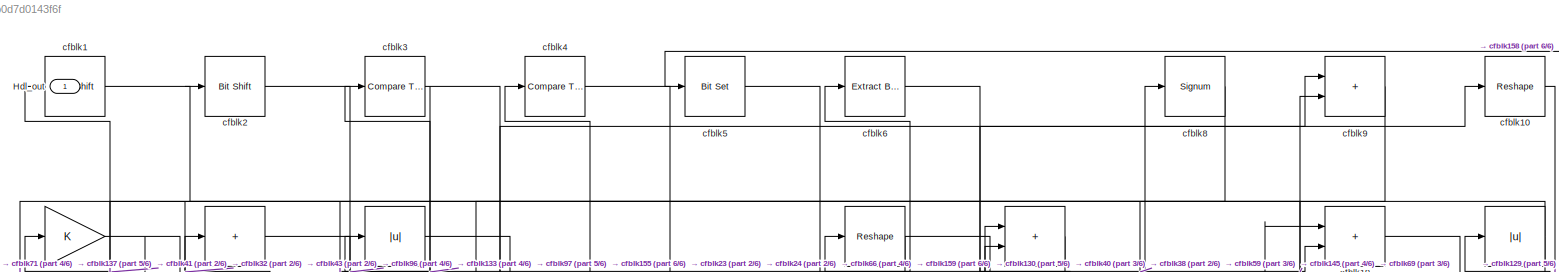
[diagram: root canvas - part 1/6, full width, top band]
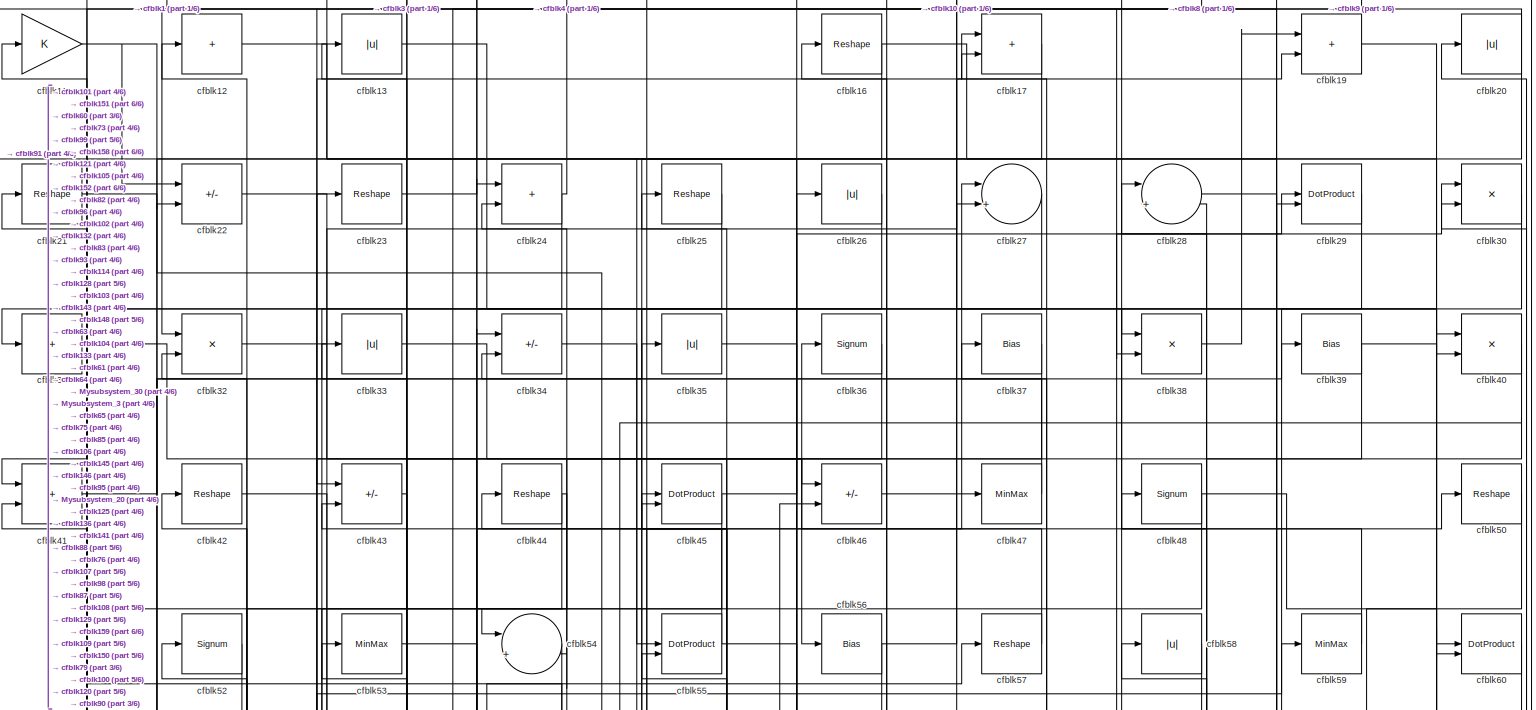
[diagram: root canvas - part 2/6, full width, top band]
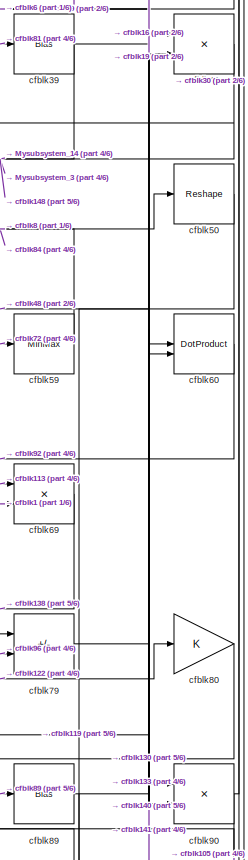
[diagram: root canvas - part 3/6, middle right region]
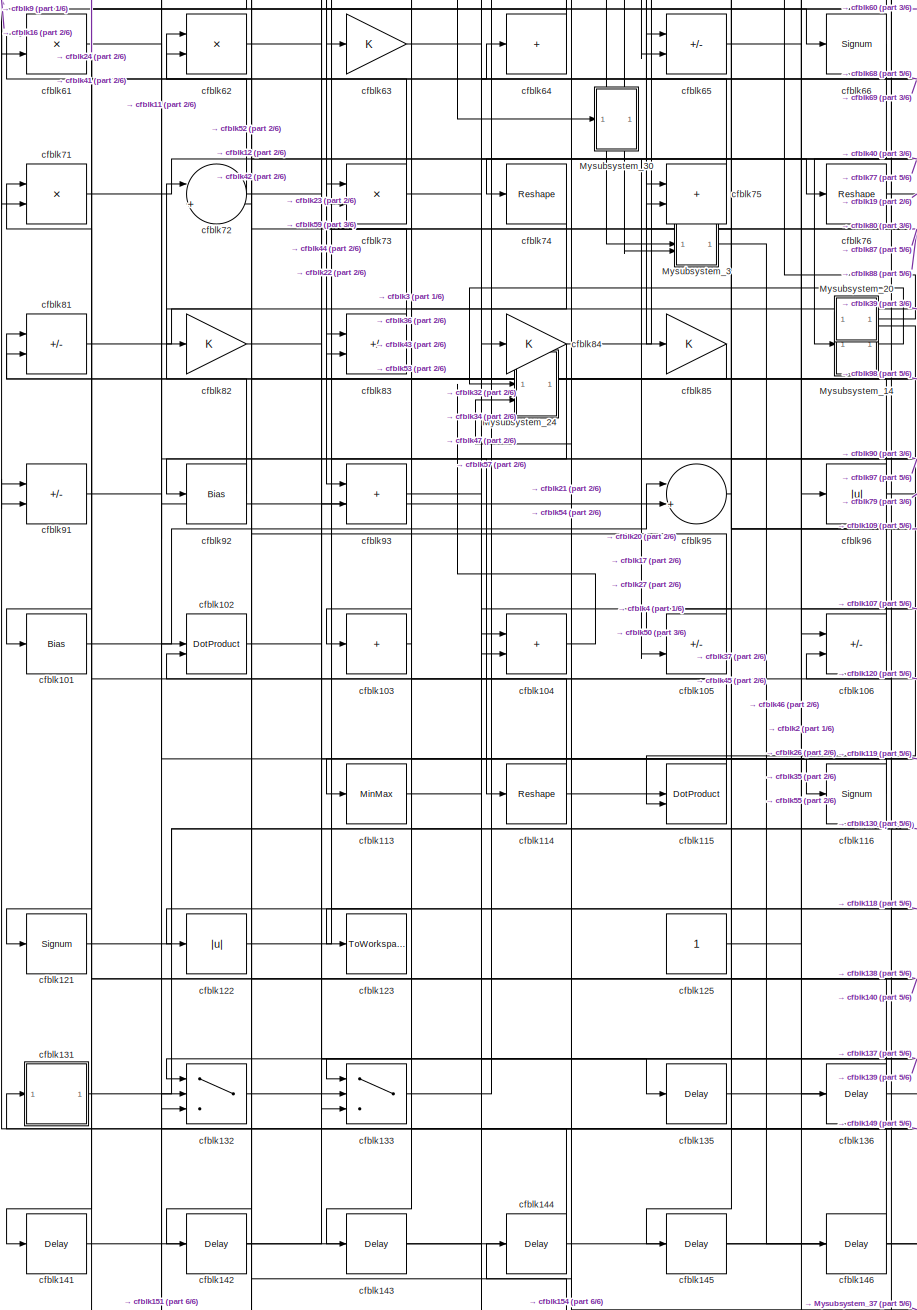
[diagram: root canvas - part 4/6, middle left region]
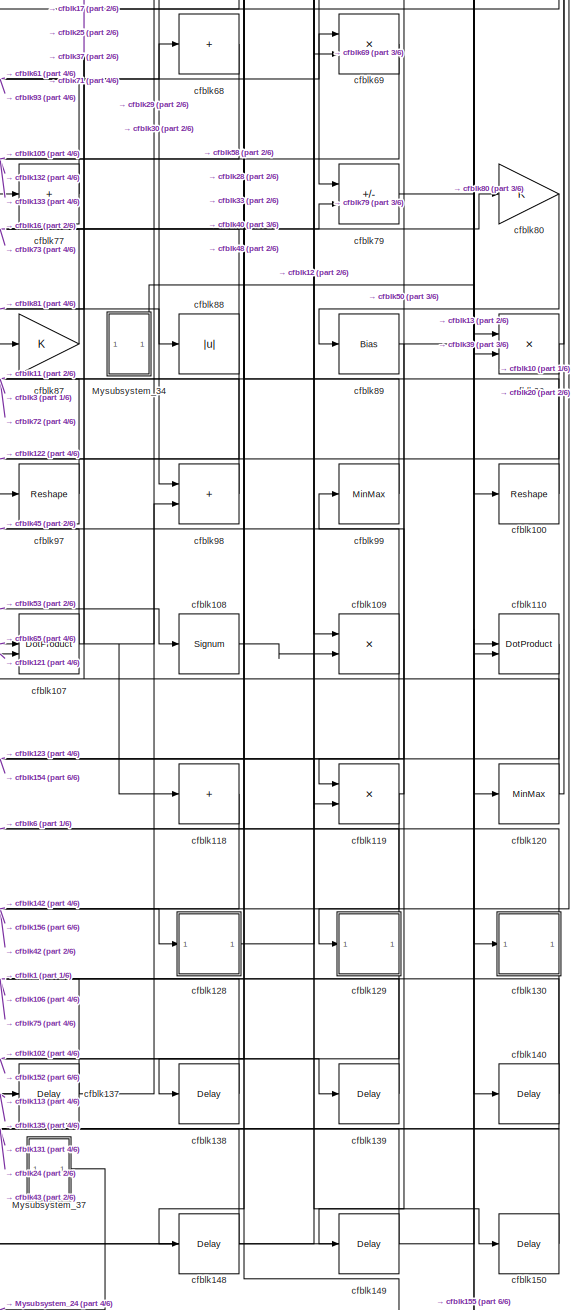
[diagram: root canvas - part 5/6, middle right region]
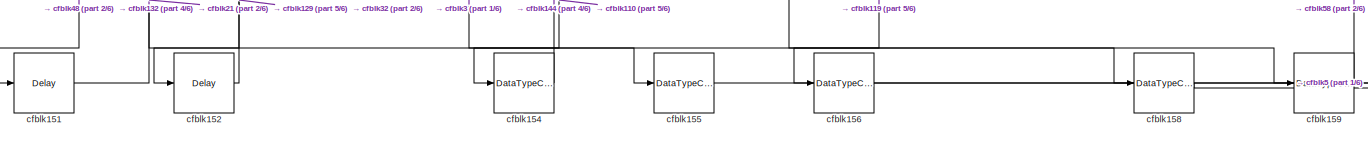
[diagram: root canvas - part 6/6, full width, bottom band]
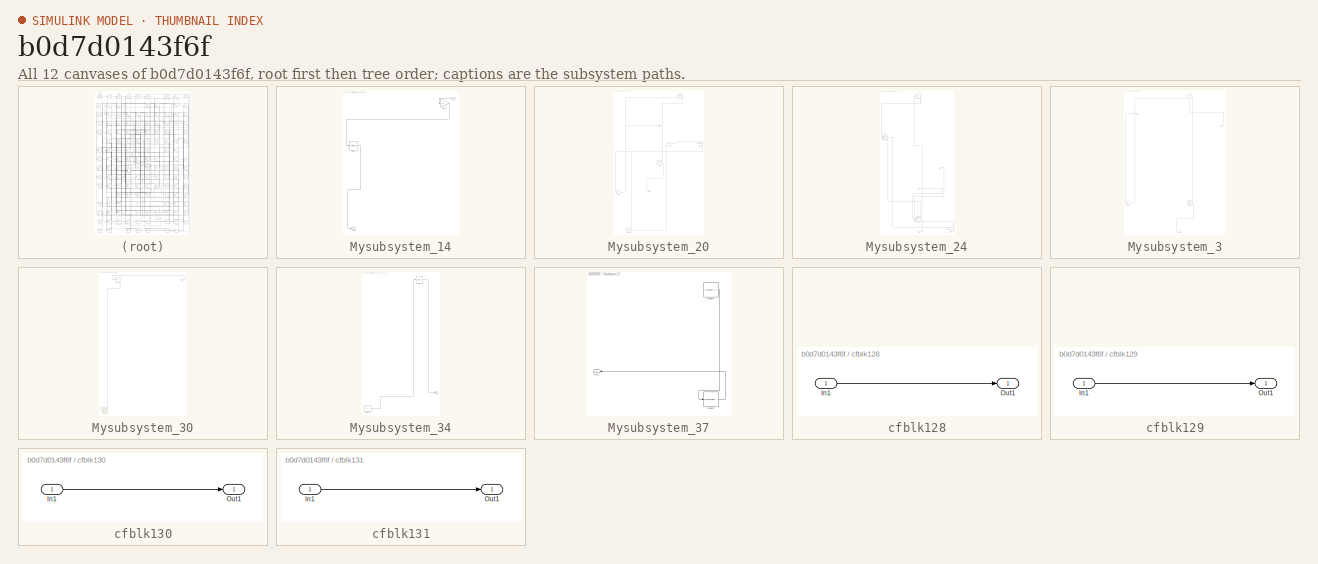
[diagram: thumbnail index - all 12 canvases of the model, root first then tree order]
MODEL slx_b0d7d0143f6f
KIND model
CONFIG AbsTol = auto
CONFIG EnableMultiTasking = off
CONFIG FixedStep = auto
CONFIG MaxStep = auto
CONFIG MinStep = auto
CONFIG RelTol = 1e-3
CONFIG SampleTimeConstraint = Unconstrained
CONFIG SolverName = VariableStepAuto
CONFIG StartTime = 0.0
CONFIG StopTime = 10.0
BLOCK [Outport] Hdl_out
  OutDataTypeStr = uint8
BLOCK [SubSystem] Mysubsystem_14
  RTWFcnName = Mysubsystem_14
  RTWFcnNameOpts = User specified
  RTWFileNameOpts = Use function name
  RTWSystemCode = Reusable function
  TreatAsAtomicUnit = on
BLOCK [Inport] Mysubsystem_14/In1
BLOCK [Outport] Mysubsystem_14/Out1
BLOCK [Gain] Mysubsystem_14/cfblk78
BLOCK [MinMax] Mysubsystem_14/cfblk94
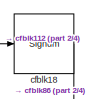
[diagram: Mysubsystem_20 - part 1/4, top right region]
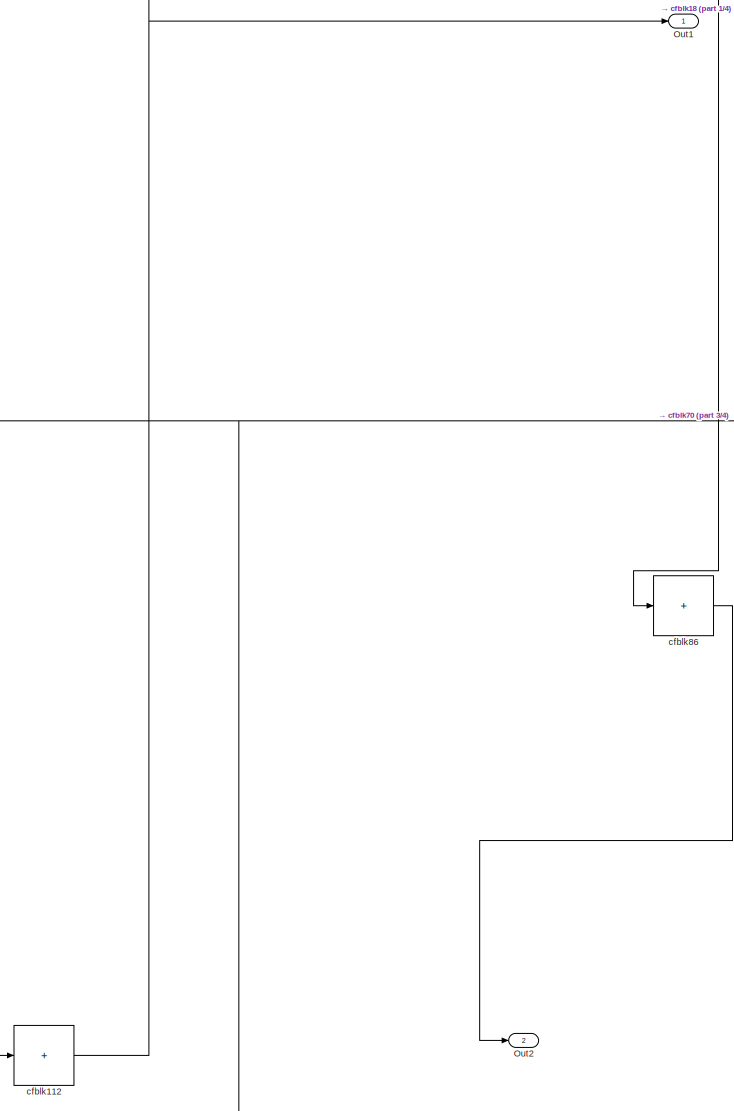
[diagram: Mysubsystem_20 - part 2/4, middle left region]
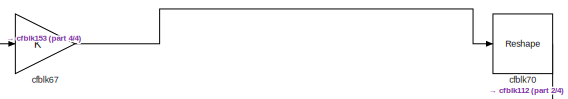
[diagram: Mysubsystem_20 - part 3/4, middle right region]
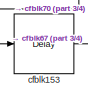
[diagram: Mysubsystem_20 - part 4/4, bottom left region]
BLOCK [SubSystem] Mysubsystem_20
  RTWFcnName = Mysubsystem_20
  RTWFcnNameOpts = User specified
  RTWFileNameOpts = Use function name
  RTWSystemCode = Reusable function
  TreatAsAtomicUnit = on
BLOCK [Outport] Mysubsystem_20/Out1
BLOCK [Outport] Mysubsystem_20/Out2
  Port = 2
BLOCK [Sum] Mysubsystem_20/cfblk112
  IconShape = rectangular
  Inputs = +
BLOCK [Delay] Mysubsystem_20/cfblk153
  InputPortMap = u0
  SampleTime = 1
BLOCK [Signum] Mysubsystem_20/cfblk18
BLOCK [Gain] Mysubsystem_20/cfblk67
BLOCK [Reshape] Mysubsystem_20/cfblk70
BLOCK [Sum] Mysubsystem_20/cfblk86
  IconShape = rectangular
  Inputs = +
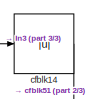
[diagram: Mysubsystem_24 - part 1/3, top center region]
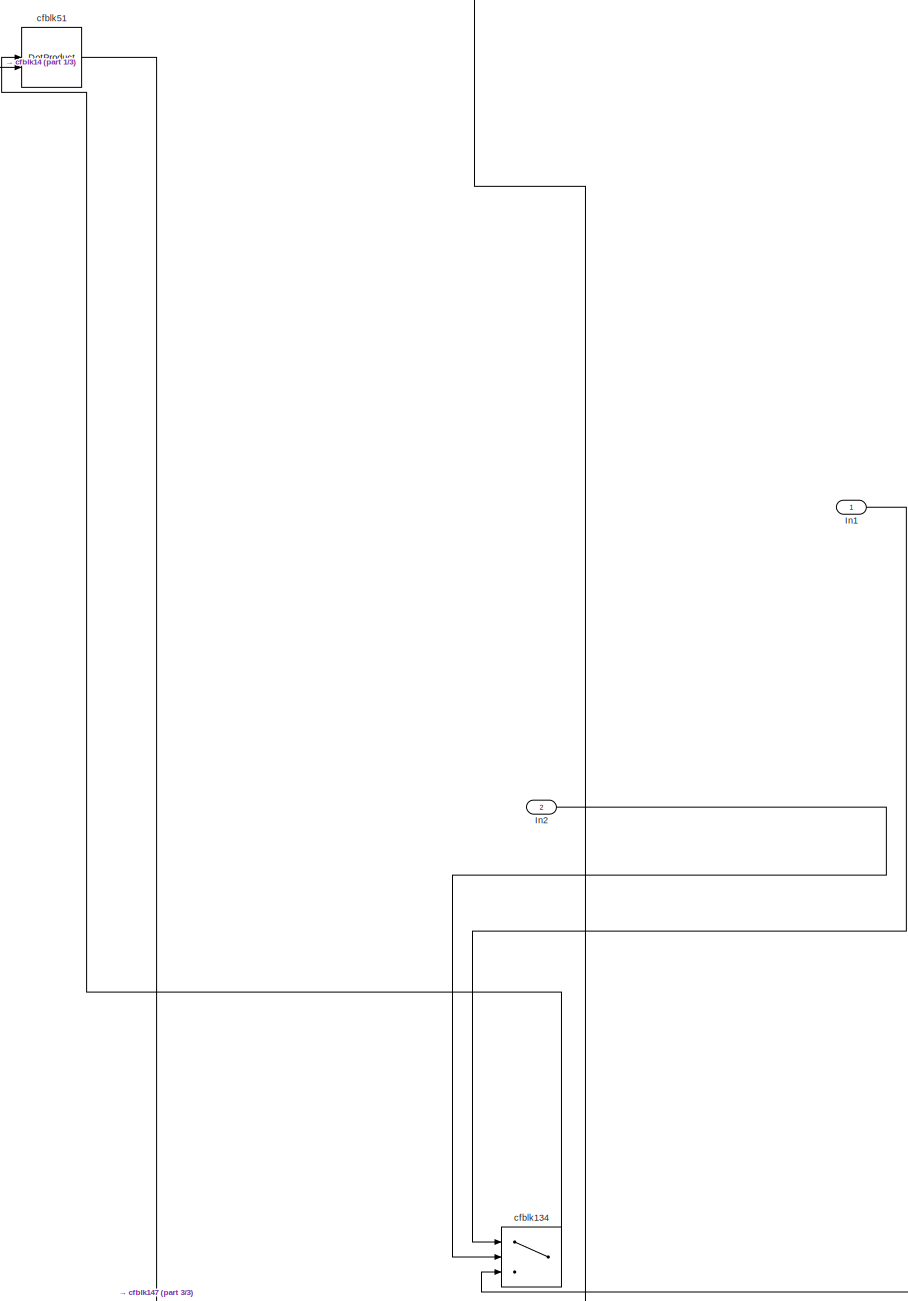
[diagram: Mysubsystem_24 - part 2/3, full width, middle band]
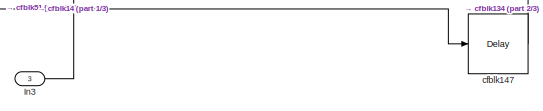
[diagram: Mysubsystem_24 - part 3/3, bottom right region]
BLOCK [SubSystem] Mysubsystem_24
  RTWFcnName = Mysubsystem_24
  RTWFcnNameOpts = User specified
  RTWFileNameOpts = Use function name
  RTWSystemCode = Reusable function
  TreatAsAtomicUnit = on
BLOCK [Inport] Mysubsystem_24/In1
BLOCK [Inport] Mysubsystem_24/In2
  Port = 2
BLOCK [Inport] Mysubsystem_24/In3
  Port = 3
BLOCK [Switch] Mysubsystem_24/cfblk134
  InputSameDT = off
  SaturateOnIntegerOverflow = off
BLOCK [Abs] Mysubsystem_24/cfblk14
  SaturateOnIntegerOverflow = off
BLOCK [Delay] Mysubsystem_24/cfblk147
  InputPortMap = u0
  SampleTime = 1
BLOCK [DotProduct] Mysubsystem_24/cfblk51
  OutDataTypeStr = Inherit: Inherit via internal rule
BLOCK [SubSystem] Mysubsystem_3
  RTWFcnName = Mysubsystem_3
  RTWFcnNameOpts = User specified
  RTWFileNameOpts = Use function name
  RTWSystemCode = Reusable function
  TreatAsAtomicUnit = on
BLOCK [Inport] Mysubsystem_3/In1
BLOCK [Inport] Mysubsystem_3/In2
  Port = 2
BLOCK [Outport] Mysubsystem_3/Out1
BLOCK [Sum] Mysubsystem_3/cfblk111
  IconShape = rectangular
  Inputs = +
BLOCK [Bias] Mysubsystem_3/cfblk117
  Bias = 0.0
  SaturateOnIntegerOverflow = off
BLOCK [Sum] Mysubsystem_3/cfblk7
  Inputs = |++
BLOCK [SubSystem] Mysubsystem_30
  RTWFcnName = Mysubsystem_30
  RTWFcnNameOpts = User specified
  RTWFileNameOpts = Use function name
  RTWSystemCode = Reusable function
  TreatAsAtomicUnit = on
BLOCK [Inport] Mysubsystem_30/In1
BLOCK [Scope] Mysubsystem_30/cfblk124
  Floating = off
  NumInputPorts = 1
  ScopeSpecificationString = Simulink.scopes.TimeScopeBlockCfg('CurrentConfiguration', extmgr.ConfigurationSet(extmgr.Configuration('Core','General UI',true),extmgr.Configuration('Core','Source UI',true),extmgr.Configuration('Sources','WiredSimulink',true,'DataLoggingVariableName','ScopeData2','DataLoggingSaveFormat','Array','DataLoggingLimitDataPoints',true,'DataLoggingDecimation','1'),extmgr.Configuration('Visuals','Time Do...<+868ch>
BLOCK [Abs] Mysubsystem_30/cfblk15
  SaturateOnIntegerOverflow = off
BLOCK [SubSystem] Mysubsystem_34
  RTWFcnName = Mysubsystem_34
  RTWFcnNameOpts = User specified
  RTWFileNameOpts = Use function name
  RTWSystemCode = Reusable function
  TreatAsAtomicUnit = on
BLOCK [Outport] Mysubsystem_34/Out1
BLOCK [Constant] Mysubsystem_34/cfblk126
  SampleTime = -1
BLOCK [Bias] Mysubsystem_34/cfblk49
  Bias = 0.0
  SaturateOnIntegerOverflow = off
BLOCK [SubSystem] Mysubsystem_37
  RTWFcnName = Mysubsystem_37
  RTWFcnNameOpts = User specified
  RTWFileNameOpts = Use function name
  RTWSystemCode = Reusable function
  TreatAsAtomicUnit = on
BLOCK [Outport] Mysubsystem_37/Out1
BLOCK [Reference] Mysubsystem_37/cfblk127  REF=hdlsllib/Sources/Counter
Limited
  SourceBlock = hdlsllib/Sources/Counter\nLimited
  SourceType = Counter Limited
BLOCK [DataTypeConversion] Mysubsystem_37/cfblk157
  RndMeth = Floor
  SaturateOnIntegerOverflow = off
BLOCK [ArithShift] cfblk1
  BitShiftNumber = 8
  InputPortMap = u0
BLOCK [Reshape] cfblk10
BLOCK [Reshape] cfblk100
BLOCK [Bias] cfblk101
  Bias = 0.0
  SaturateOnIntegerOverflow = off
BLOCK [DotProduct] cfblk102
  OutDataTypeStr = uint8
BLOCK [Sum] cfblk103
  IconShape = rectangular
  Inputs = +
  OutDataTypeStr = uint8
BLOCK [Sum] cfblk104
  IconShape = rectangular
  OutDataTypeStr = uint8
BLOCK [Sum] cfblk105
  IconShape = rectangular
  Inputs = +-
  OutDataTypeStr = uint8
BLOCK [Sum] cfblk106
  IconShape = rectangular
  Inputs = +-
  OutDataTypeStr = uint8
BLOCK [DotProduct] cfblk107
  OutDataTypeStr = uint8
BLOCK [Signum] cfblk108
BLOCK [Product] cfblk109
  Inputs = */
  OutDataTypeStr = uint8
  RndMeth = Zero
  SaturateOnIntegerOverflow = on
BLOCK [Gain] cfblk11
  OutDataTypeStr = uint8
BLOCK [DotProduct] cfblk110
  OutDataTypeStr = uint8
BLOCK [MinMax] cfblk113
  OutDataTypeStr = uint8
BLOCK [Reshape] cfblk114
BLOCK [DotProduct] cfblk115
  OutDataTypeStr = uint8
BLOCK [Signum] cfblk116
BLOCK [Sum] cfblk118
  IconShape = rectangular
  Inputs = +
  OutDataTypeStr = uint8
BLOCK [Product] cfblk119
  Inputs = */
  OutDataTypeStr = uint8
  RndMeth = Zero
  SaturateOnIntegerOverflow = on
BLOCK [Sum] cfblk12
  IconShape = rectangular
  Inputs = +
  OutDataTypeStr = uint8
BLOCK [MinMax] cfblk120
  OutDataTypeStr = uint8
BLOCK [Signum] cfblk121
BLOCK [Abs] cfblk122
  OutDataTypeStr = uint8
  SaturateOnIntegerOverflow = off
BLOCK [ToWorkspace] cfblk123
  MaxDataPoints = inf
  SampleTime = -1
  SaveFormat = Timeseries
  VariableName = simout
BLOCK [Constant] cfblk125
  OutDataTypeStr = uint8
  SampleTime = -1
BLOCK [SubSystem] cfblk128
  LibrarySourceBlock = hdlsllib/Ports &\nSubsystems/Subsystem
BLOCK [Inport] cfblk128/In1
BLOCK [Outport] cfblk128/Out1
BLOCK [SubSystem] cfblk129
  LibrarySourceBlock = hdlsllib/Ports &\nSubsystems/Subsystem
BLOCK [Inport] cfblk129/In1
BLOCK [Outport] cfblk129/Out1
BLOCK [Abs] cfblk13
  OutDataTypeStr = uint8
  SaturateOnIntegerOverflow = off
BLOCK [SubSystem] cfblk130
  LibrarySourceBlock = hdlsllib/Ports &\nSubsystems/Subsystem
BLOCK [Inport] cfblk130/In1
BLOCK [Outport] cfblk130/Out1
BLOCK [SubSystem] cfblk131
  LibrarySourceBlock = hdlsllib/Ports &\nSubsystems/Subsystem
BLOCK [Inport] cfblk131/In1
BLOCK [Outport] cfblk131/Out1
BLOCK [Switch] cfblk132
  InputSameDT = off
  OutDataTypeStr = uint8
  SaturateOnIntegerOverflow = off
BLOCK [Switch] cfblk133
  InputSameDT = off
  OutDataTypeStr = uint8
  SaturateOnIntegerOverflow = off
BLOCK [Delay] cfblk135
  InputPortMap = u0
  SampleTime = 1
BLOCK [Delay] cfblk136
  InputPortMap = u0
  SampleTime = 1
BLOCK [Delay] cfblk137
  InputPortMap = u0
  SampleTime = 1
BLOCK [Delay] cfblk138
  InputPortMap = u0
  SampleTime = 1
BLOCK [Delay] cfblk139
  InputPortMap = u0
  SampleTime = 1
BLOCK [Delay] cfblk140
  InputPortMap = u0
  SampleTime = 1
BLOCK [Delay] cfblk141
  InputPortMap = u0
  SampleTime = 1
BLOCK [Delay] cfblk142
  InputPortMap = u0
  SampleTime = 1
BLOCK [Delay] cfblk143
  InputPortMap = u0
  SampleTime = 1
BLOCK [Delay] cfblk144
  InputPortMap = u0
  SampleTime = 1
BLOCK [Delay] cfblk145
  InputPortMap = u0
  SampleTime = 1
BLOCK [Delay] cfblk146
  InputPortMap = u0
  SampleTime = 1
BLOCK [Delay] cfblk148
  InputPortMap = u0
  SampleTime = 1
BLOCK [Delay] cfblk149
  InputPortMap = u0
  SampleTime = 1
BLOCK [Delay] cfblk150
  InputPortMap = u0
  SampleTime = 1
BLOCK [Delay] cfblk151
  InputPortMap = u0
  SampleTime = 1
BLOCK [Delay] cfblk152
  InputPortMap = u0
  SampleTime = 1
BLOCK [DataTypeConversion] cfblk154
  OutDataTypeStr = uint8
  RndMeth = Floor
  SaturateOnIntegerOverflow = off
BLOCK [DataTypeConversion] cfblk155
  OutDataTypeStr = uint8
  RndMeth = Floor
  SaturateOnIntegerOverflow = off
BLOCK [DataTypeConversion] cfblk156
  OutDataTypeStr = uint8
  RndMeth = Floor
  SaturateOnIntegerOverflow = off
BLOCK [DataTypeConversion] cfblk158
  OutDataTypeStr = uint8
  RndMeth = Floor
  SaturateOnIntegerOverflow = off
BLOCK [DataTypeConversion] cfblk159
  OutDataTypeStr = uint8
  RndMeth = Floor
  SaturateOnIntegerOverflow = off
BLOCK [Reshape] cfblk16
BLOCK [Sum] cfblk17
  IconShape = rectangular
  OutDataTypeStr = uint8
BLOCK [Sum] cfblk19
  IconShape = rectangular
  OutDataTypeStr = uint8
BLOCK [Reference] cfblk2  REF=hdlsllib/Logic and Bit
Operations/Bit Shift
  SourceBlock = hdlsllib/Logic and Bit\nOperations/Bit Shift
  SourceType = Bit Shift
BLOCK [Abs] cfblk20
  OutDataTypeStr = uint8
  SaturateOnIntegerOverflow = off
BLOCK [Reshape] cfblk21
BLOCK [Sum] cfblk22
  IconShape = rectangular
  Inputs = +-
  OutDataTypeStr = uint8
BLOCK [Reshape] cfblk23
BLOCK [Sum] cfblk24
  IconShape = rectangular
  OutDataTypeStr = uint8
BLOCK [Reshape] cfblk25
BLOCK [Abs] cfblk26
  OutDataTypeStr = uint8
  SaturateOnIntegerOverflow = off
BLOCK [Sum] cfblk27
  Inputs = |++
  OutDataTypeStr = uint8
BLOCK [Sum] cfblk28
  Inputs = |++
  OutDataTypeStr = uint8
BLOCK [DotProduct] cfblk29
  OutDataTypeStr = uint8
BLOCK [Reference] cfblk3  REF=hdlsllib/Logic and Bit
Operations/Compare
To Constant
  SourceBlock = hdlsllib/Logic and Bit\nOperations/Compare\nTo Constant
  SourceType = Compare To Constant
BLOCK [Product] cfblk30
  Inputs = */
  OutDataTypeStr = uint8
  RndMeth = Zero
  SaturateOnIntegerOverflow = on
BLOCK [Sum] cfblk31
  IconShape = rectangular
  Inputs = +
  OutDataTypeStr = uint8
BLOCK [Product] cfblk32
  Inputs = */
  OutDataTypeStr = uint8
  RndMeth = Zero
  SaturateOnIntegerOverflow = on
BLOCK [Abs] cfblk33
  OutDataTypeStr = uint8
  SaturateOnIntegerOverflow = off
BLOCK [Sum] cfblk34
  IconShape = rectangular
  Inputs = +-
  OutDataTypeStr = uint8
BLOCK [Abs] cfblk35
  OutDataTypeStr = uint8
  SaturateOnIntegerOverflow = off
BLOCK [Signum] cfblk36
BLOCK [Bias] cfblk37
  Bias = 0.0
  SaturateOnIntegerOverflow = off
BLOCK [Product] cfblk38
  Inputs = */
  OutDataTypeStr = uint8
  RndMeth = Zero
  SaturateOnIntegerOverflow = on
BLOCK [Bias] cfblk39
  Bias = 0.0
  SaturateOnIntegerOverflow = off
BLOCK [Reference] cfblk4  REF=hdlsllib/Logic and Bit
Operations/Compare
To Constant
  SourceBlock = hdlsllib/Logic and Bit\nOperations/Compare\nTo Constant
  SourceType = Compare To Constant
BLOCK [Product] cfblk40
  Inputs = */
  OutDataTypeStr = uint8
  RndMeth = Zero
  SaturateOnIntegerOverflow = on
BLOCK [Sum] cfblk41
  IconShape = rectangular
  OutDataTypeStr = uint8
BLOCK [Reshape] cfblk42
BLOCK [Sum] cfblk43
  IconShape = rectangular
  Inputs = +-
  OutDataTypeStr = uint8
BLOCK [Reshape] cfblk44
BLOCK [DotProduct] cfblk45
  OutDataTypeStr = uint8
BLOCK [Sum] cfblk46
  IconShape = rectangular
  Inputs = +-
  OutDataTypeStr = uint8
BLOCK [MinMax] cfblk47
  OutDataTypeStr = uint8
BLOCK [Signum] cfblk48
BLOCK [Reference] cfblk5  REF=simulink/Logic and Bit
Operations/Bit Set
  LibrarySourceBlock = hdlsllib/Logic and Bit\nOperations/Bit Set
  SourceBlock = simulink/Logic and Bit\nOperations/Bit Set
  SourceType = Bit Set
BLOCK [Reshape] cfblk50
BLOCK [Signum] cfblk52
BLOCK [MinMax] cfblk53
  OutDataTypeStr = uint8
BLOCK [Sum] cfblk54
  Inputs = |++
  OutDataTypeStr = uint8
BLOCK [DotProduct] cfblk55
  OutDataTypeStr = uint8
BLOCK [Bias] cfblk56
  Bias = 0.0
  SaturateOnIntegerOverflow = off
BLOCK [Reshape] cfblk57
BLOCK [Abs] cfblk58
  OutDataTypeStr = uint8
  SaturateOnIntegerOverflow = off
BLOCK [MinMax] cfblk59
  OutDataTypeStr = uint8
BLOCK [Reference] cfblk6  REF=simulink/Logic and Bit
Operations/Extract Bits
  LibrarySourceBlock = hdlsllib/Logic and Bit\nOperations/Extract Bits
  SourceBlock = simulink/Logic and Bit\nOperations/Extract Bits
  SourceType = Extract Bits
BLOCK [DotProduct] cfblk60
  OutDataTypeStr = uint8
BLOCK [Product] cfblk61
  Inputs = */
  OutDataTypeStr = uint8
  RndMeth = Zero
  SaturateOnIntegerOverflow = on
BLOCK [Product] cfblk62
  Inputs = */
  OutDataTypeStr = uint8
  RndMeth = Zero
  SaturateOnIntegerOverflow = on
BLOCK [Gain] cfblk63
  OutDataTypeStr = uint8
BLOCK [Sum] cfblk64
  IconShape = rectangular
  Inputs = +
  OutDataTypeStr = uint8
BLOCK [Sum] cfblk65
  IconShape = rectangular
  Inputs = +-
  OutDataTypeStr = uint8
BLOCK [Signum] cfblk66
BLOCK [Sum] cfblk68
  IconShape = rectangular
  Inputs = +
  OutDataTypeStr = uint8
BLOCK [Product] cfblk69
  Inputs = */
  OutDataTypeStr = uint8
  RndMeth = Zero
  SaturateOnIntegerOverflow = on
BLOCK [Product] cfblk71
  Inputs = */
  OutDataTypeStr = uint8
  RndMeth = Zero
  SaturateOnIntegerOverflow = on
BLOCK [Sum] cfblk72
  Inputs = |++
  OutDataTypeStr = uint8
BLOCK [Product] cfblk73
  Inputs = */
  OutDataTypeStr = uint8
  RndMeth = Zero
  SaturateOnIntegerOverflow = on
BLOCK [Reshape] cfblk74
BLOCK [Sum] cfblk75
  IconShape = rectangular
  OutDataTypeStr = uint8
BLOCK [Reshape] cfblk76
BLOCK [Sum] cfblk77
  IconShape = rectangular
  Inputs = +
  OutDataTypeStr = uint8
BLOCK [Sum] cfblk79
  IconShape = rectangular
  Inputs = +-
  OutDataTypeStr = uint8
BLOCK [Signum] cfblk8
BLOCK [Gain] cfblk80
  OutDataTypeStr = uint8
BLOCK [Sum] cfblk81
  IconShape = rectangular
  Inputs = +-
  OutDataTypeStr = uint8
BLOCK [Gain] cfblk82
  OutDataTypeStr = uint8
BLOCK [Sum] cfblk83
  IconShape = rectangular
  Inputs = +-
  OutDataTypeStr = uint8
BLOCK [Gain] cfblk84
  OutDataTypeStr = uint8
BLOCK [Gain] cfblk85
  OutDataTypeStr = uint8
BLOCK [Gain] cfblk87
  OutDataTypeStr = uint8
BLOCK [Abs] cfblk88
  OutDataTypeStr = uint8
  SaturateOnIntegerOverflow = off
BLOCK [Bias] cfblk89
  Bias = 0.0
  SaturateOnIntegerOverflow = off
BLOCK [Sum] cfblk9
  IconShape = rectangular
  OutDataTypeStr = uint8
BLOCK [Product] cfblk90
  Inputs = */
  OutDataTypeStr = uint8
  RndMeth = Zero
  SaturateOnIntegerOverflow = on
BLOCK [Sum] cfblk91
  IconShape = rectangular
  Inputs = +-
  OutDataTypeStr = uint8
BLOCK [Bias] cfblk92
  Bias = 0.0
  SaturateOnIntegerOverflow = off
BLOCK [Sum] cfblk93
  IconShape = rectangular
  OutDataTypeStr = uint8
BLOCK [Sum] cfblk95
  Inputs = |++
  OutDataTypeStr = uint8
BLOCK [Abs] cfblk96
  OutDataTypeStr = uint8
  SaturateOnIntegerOverflow = off
BLOCK [Reshape] cfblk97
BLOCK [Sum] cfblk98
  IconShape = rectangular
  OutDataTypeStr = uint8
BLOCK [MinMax] cfblk99
  OutDataTypeStr = uint8
LINE Mysubsystem_14/In1:1 -> Mysubsystem_14/cfblk78:1
LINE Mysubsystem_14/cfblk78:1 -> Mysubsystem_14/cfblk94:1
LINE Mysubsystem_14/cfblk94:1 -> Mysubsystem_14/Out1:1
LINE Mysubsystem_14:1 -> Mysubsystem_24:1
NET Mysubsystem_20/cfblk112:1 -> Mysubsystem_20/Out1:1, Mysubsystem_20/cfblk18:1
LINE Mysubsystem_20/cfblk153:1 -> Mysubsystem_20/cfblk67:1
LINE Mysubsystem_20/cfblk18:1 -> Mysubsystem_20/cfblk86:1
LINE Mysubsystem_20/cfblk67:1 -> Mysubsystem_20/cfblk70:1
NET Mysubsystem_20/cfblk70:1 -> Mysubsystem_20/cfblk112:1, Mysubsystem_20/cfblk153:1
LINE Mysubsystem_20/cfblk86:1 -> Mysubsystem_20/Out2:1
LINE Mysubsystem_20:1 -> cfblk46:2
LINE Mysubsystem_20:2 -> cfblk115:1
LINE Mysubsystem_24/In1:1 -> Mysubsystem_24/cfblk134:1
LINE Mysubsystem_24/In2:1 -> Mysubsystem_24/cfblk134:2
LINE Mysubsystem_24/In3:1 -> Mysubsystem_24/cfblk14:1
LINE Mysubsystem_24/cfblk134:1 -> Mysubsystem_24/cfblk51:1
LINE Mysubsystem_24/cfblk147:1 -> Mysubsystem_24/cfblk134:3
LINE Mysubsystem_24/cfblk14:1 -> Mysubsystem_24/cfblk51:2
LINE Mysubsystem_24/cfblk51:1 -> Mysubsystem_24/cfblk147:1
LINE Mysubsystem_3/In1:1 -> Mysubsystem_3/cfblk111:1
LINE Mysubsystem_3/In2:1 -> Mysubsystem_3/cfblk7:2
LINE Mysubsystem_3/cfblk111:1 -> Mysubsystem_3/cfblk7:1
LINE Mysubsystem_3/cfblk117:1 -> Mysubsystem_3/Out1:1
LINE Mysubsystem_3/cfblk7:1 -> Mysubsystem_3/cfblk117:1
LINE Mysubsystem_30/In1:1 -> Mysubsystem_30/cfblk15:1
LINE Mysubsystem_30/cfblk15:1 -> Mysubsystem_30/cfblk124:1
LINE Mysubsystem_34/cfblk126:1 -> Mysubsystem_34/cfblk49:1
LINE Mysubsystem_34/cfblk49:1 -> Mysubsystem_34/Out1:1
LINE Mysubsystem_34:1 -> cfblk120:1
LINE Mysubsystem_37/cfblk127:1 -> Mysubsystem_37/cfblk157:1
LINE Mysubsystem_37/cfblk157:1 -> Mysubsystem_37/Out1:1
NET Mysubsystem_37:1 -> Mysubsystem_24:3, cfblk102:2
LINE Mysubsystem_3:1 -> cfblk146:1
LINE cfblk100:1 -> cfblk28:1
LINE cfblk101:1 -> cfblk95:1
NET cfblk102:1 -> cfblk139:1, cfblk17:2, cfblk64:1
LINE cfblk103:1 -> cfblk53:1
LINE cfblk104:1 -> Mysubsystem_24:2
LINE cfblk105:1 -> cfblk12:1
LINE cfblk106:1 -> cfblk44:1
NET cfblk107:1 -> cfblk118:1, cfblk25:1, cfblk29:1, cfblk37:1
NET cfblk108:1 -> cfblk109:2, cfblk28:2
NET cfblk109:1 -> cfblk123:1, cfblk45:2
LINE cfblk10:1 -> cfblk129:1
LINE cfblk110:1 -> cfblk154:1
NET cfblk113:1 -> cfblk137:1, cfblk69:1
NET cfblk114:1 -> cfblk115:2, cfblk24:2, cfblk52:1
LINE cfblk115:1 -> cfblk73:1
LINE cfblk116:1 -> cfblk113:1
LINE cfblk118:1 -> cfblk142:1
NET cfblk119:1 -> cfblk156:1, cfblk99:1
NET cfblk11:1 -> cfblk22:1, cfblk95:2
NET cfblk120:1 -> cfblk17:1, cfblk20:1, cfblk71:1
LINE cfblk121:1 -> cfblk107:2
LINE cfblk122:1 -> cfblk80:1
LINE cfblk125:1 -> cfblk26:1
LINE cfblk128/In1:1 -> cfblk128/Out1:1
LINE cfblk128:1 -> cfblk29:2
LINE cfblk129/In1:1 -> cfblk129/Out1:1
NET cfblk129:1 -> cfblk152:1, cfblk33:1, cfblk48:1
LINE cfblk12:1 -> cfblk109:1
LINE cfblk130/In1:1 -> cfblk130/Out1:1
NET cfblk130:1 -> cfblk131:1, cfblk6:1
LINE cfblk131/In1:1 -> cfblk131/Out1:1
LINE cfblk131:1 -> cfblk84:1
LINE cfblk132:1 -> cfblk23:1
LINE cfblk133:1 -> cfblk57:1
LINE cfblk135:1 -> cfblk98:2
LINE cfblk136:1 -> cfblk72:2
LINE cfblk137:1 -> cfblk1:1
LINE cfblk138:1 -> cfblk81:2
LINE cfblk139:1 -> cfblk106:2
LINE cfblk13:1 -> cfblk100:1
LINE cfblk140:1 -> cfblk75:2
LINE cfblk141:1 -> cfblk60:1
LINE cfblk142:1 -> cfblk93:2
LINE cfblk143:1 -> cfblk34:1
LINE cfblk144:1 -> cfblk91:1
LINE cfblk145:1 -> cfblk9:2
LINE cfblk146:1 -> cfblk55:2
LINE cfblk148:1 -> cfblk43:2
LINE cfblk149:1 -> cfblk132:2
LINE cfblk150:1 -> cfblk24:1
LINE cfblk151:1 -> cfblk132:3
LINE cfblk152:1 -> cfblk32:2
LINE cfblk154:1 -> cfblk144:1
LINE cfblk155:1 -> cfblk110:1
LINE cfblk156:1 -> cfblk110:2
LINE cfblk158:1 -> cfblk5:1
LINE cfblk159:1 -> cfblk58:1
NET cfblk16:1 -> cfblk90:1, cfblk91:2
LINE cfblk17:1 -> cfblk75:1
LINE cfblk19:1 -> cfblk90:2
NET cfblk1:1 -> cfblk2:1, cfblk43:1, cfblk69:2
NET cfblk20:1 -> Mysubsystem_30:1, Mysubsystem_3:1, cfblk22:2, cfblk65:2
LINE cfblk21:1 -> cfblk158:1
LINE cfblk22:1 -> cfblk114:1
LINE cfblk23:1 -> cfblk9:1
NET cfblk24:1 -> cfblk101:1, cfblk4:1
LINE cfblk25:1 -> cfblk31:1
LINE cfblk26:1 -> cfblk83:1
LINE cfblk27:1 -> cfblk85:1
LINE cfblk28:1 -> cfblk150:1
LINE cfblk29:1 -> cfblk79:1
LINE cfblk2:1 -> cfblk96:1
LINE cfblk30:1 -> cfblk98:1
LINE cfblk31:1 -> cfblk56:1
NET cfblk32:1 -> cfblk104:1, cfblk10:1
LINE cfblk33:1 -> cfblk46:1
LINE cfblk34:1 -> cfblk55:1
LINE cfblk35:1 -> cfblk136:1
LINE cfblk36:1 -> cfblk143:1
NET cfblk37:1 -> cfblk145:1, cfblk54:1
LINE cfblk38:1 -> cfblk19:1
NET cfblk39:1 -> cfblk130:1, cfblk133:3
NET cfblk3:1 -> cfblk133:1, cfblk155:1, cfblk38:1
NET cfblk40:1 -> Mysubsystem_14:1, Mysubsystem_3:2, cfblk148:1
LINE cfblk41:1 -> cfblk35:1
LINE cfblk42:1 -> cfblk128:1
LINE cfblk43:1 -> cfblk63:1
NET cfblk44:1 -> cfblk54:2, cfblk93:1
NET cfblk45:1 -> cfblk30:2, cfblk82:1
LINE cfblk46:1 -> cfblk27:1
LINE cfblk47:1 -> cfblk34:2
NET cfblk48:1 -> cfblk151:1, cfblk60:2
LINE cfblk4:1 -> cfblk66:1
LINE cfblk50:1 -> cfblk119:1
LINE cfblk52:1 -> cfblk121:1
LINE cfblk53:1 -> cfblk108:1
LINE cfblk54:1 -> cfblk61:2
NET cfblk55:1 -> cfblk106:1, cfblk13:1
NET cfblk56:1 -> cfblk141:1, cfblk27:2
LINE cfblk57:1 -> cfblk36:1
LINE cfblk58:1 -> cfblk87:1
LINE cfblk59:1 -> cfblk8:1
LINE cfblk5:1 -> cfblk159:1
LINE cfblk60:1 -> cfblk92:1
LINE cfblk61:1 -> cfblk97:1
LINE cfblk62:1 -> cfblk135:1
LINE cfblk63:1 -> cfblk47:1
LINE cfblk64:1 -> cfblk21:1
LINE cfblk65:1 -> cfblk107:1
LINE cfblk66:1 -> cfblk74:1
NET cfblk68:1 -> cfblk105:2, cfblk132:1, cfblk133:2
LINE cfblk69:1 -> cfblk138:1
LINE cfblk6:1 -> cfblk40:2
NET cfblk71:1 -> cfblk119:2, cfblk77:1
NET cfblk72:1 -> cfblk59:1, cfblk62:1
NET cfblk73:1 -> cfblk41:2, cfblk76:1
LINE cfblk74:1 -> cfblk103:1
LINE cfblk75:1 -> cfblk65:1
LINE cfblk76:1 -> cfblk19:2
LINE cfblk77:1 -> cfblk61:1
LINE cfblk79:1 -> cfblk140:1
LINE cfblk80:1 -> cfblk89:1
NET cfblk81:1 -> cfblk39:1, cfblk88:1
LINE cfblk82:1 -> cfblk116:1
LINE cfblk83:1 -> cfblk62:2
NET cfblk84:1 -> cfblk104:2, cfblk50:1
LINE cfblk85:1 -> cfblk83:2
LINE cfblk87:1 -> cfblk73:2
NET cfblk88:1 -> cfblk122:1, cfblk16:1
NET cfblk89:1 -> cfblk149:1, cfblk40:1
LINE cfblk8:1 -> cfblk41:1
NET cfblk90:1 -> cfblk105:1, cfblk30:1
LINE cfblk91:1 -> cfblk102:1
LINE cfblk92:1 -> cfblk81:1
LINE cfblk93:1 -> cfblk68:1
LINE cfblk95:1 -> cfblk45:1
NET cfblk96:1 -> cfblk42:1, cfblk79:2
LINE cfblk97:1 -> cfblk3:1
LINE cfblk98:1 -> cfblk72:1
LINE cfblk99:1 -> cfblk11:1
NET cfblk9:1 -> cfblk32:1, cfblk38:2, cfblk71:2
note: NET lines group one-source signal fan-out (src -> all destinations, sorted); 1:1 wires keep LINE
